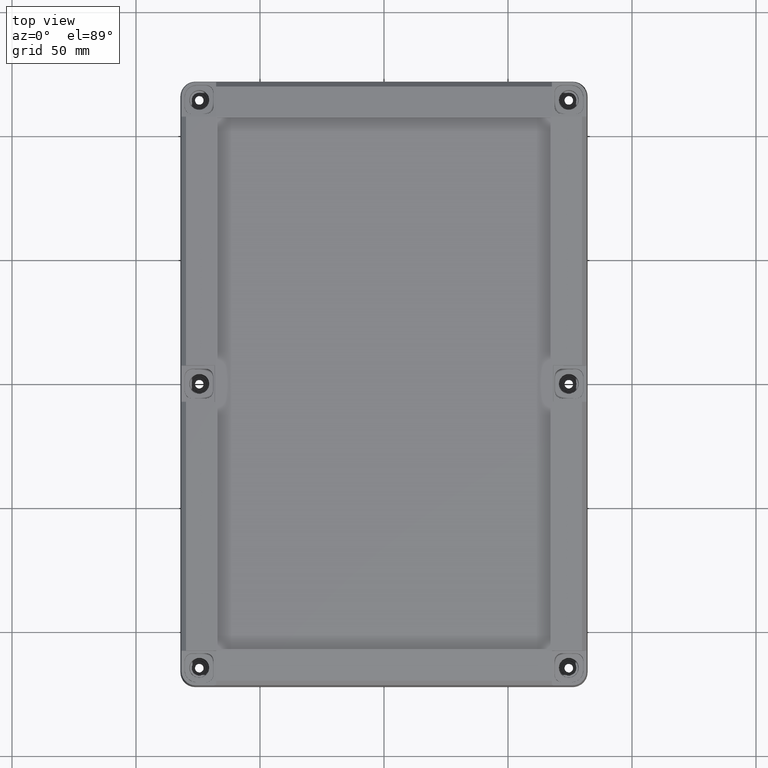
[diagram: clean part render]
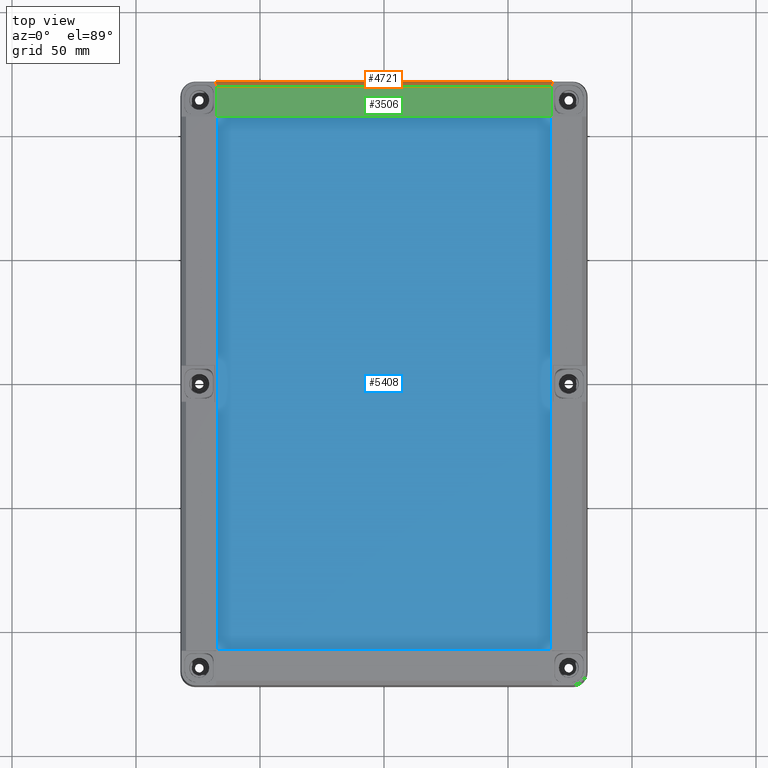
[diagram: same view with three faces highlighted in distinct colors, each labeled with its STEP entity id]
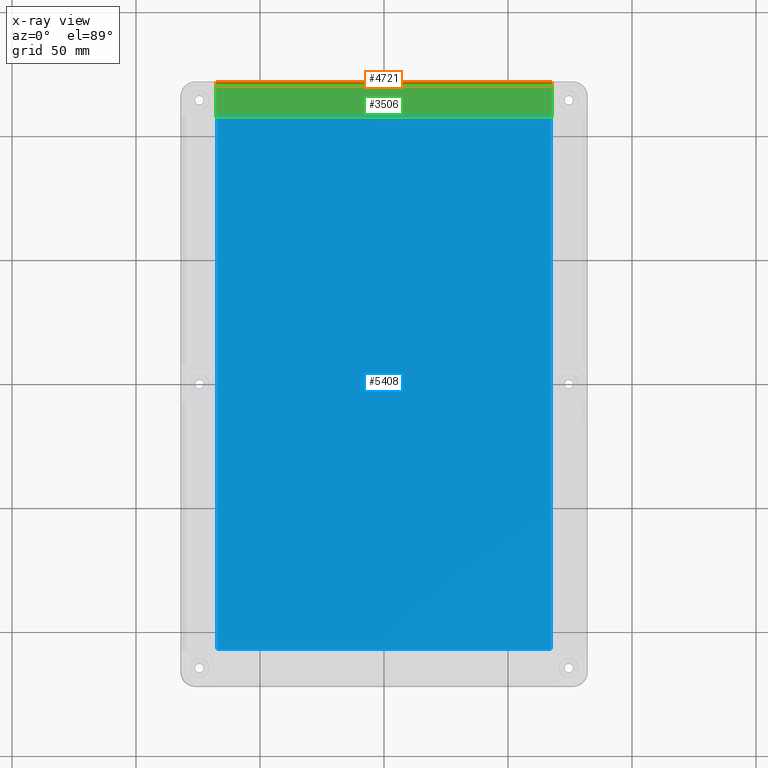
[diagram: x-ray of the same camera — body ghosted, the three highlighted faces saturated]
A machine part, top view with three faces highlighted in distinct colors.
The next image is the same camera in x-ray (body ghosted, the three faces saturated) — at least one of them is partly hidden behind the body in this view.
Their STEP definitions:

[orange] entity #4721 — the highlighted planar face has unit normal (0, -0.7314, -0.682).
#265 = LINE ( 'NONE', #5416, #1408 ) ;
#324 = VECTOR ( 'NONE', #5333, 1000.000000000000000 ) ;
#578 = DIRECTION ( 'NONE',  ( -0.01190002584280855400, 0.6819500692491989900, -0.7313019160620004600 ) ) ;
#735 = PLANE ( 'NONE',  #1246 ) ;
#1001 = ORIENTED_EDGE ( 'NONE', *, *, #3392, .F. ) ;
#1065 = EDGE_CURVE ( 'NONE', #3693, #2339, #2463, .T. ) ;
#1099 = CARTESIAN_POINT ( 'NONE',  ( -82.09999999999996600, 119.8356825560880900, 18.93934225913596200 ) ) ;
#1221 = DIRECTION ( 'NONE',  ( 1.000000000000000000, 0.0000000000000000000, 0.0000000000000000000 ) ) ;
#1246 = AXIS2_PLACEMENT_3D ( 'NONE', #2139, #4018, #1221 ) ;
#1298 = VERTEX_POINT ( 'NONE', #5971 ) ;
#1315 = CARTESIAN_POINT ( 'NONE',  ( -67.71230767677299400, 121.6429275376264800, 17.00130928958507300 ) ) ;
#1408 = VECTOR ( 'NONE', #4463, 1000.000000000000000 ) ;
#1506 = ORIENTED_EDGE ( 'NONE', *, *, #1065, .F. ) ;
#1533 = FACE_OUTER_BOUND ( 'NONE', #5298, .T. ) ;
#1611 = LINE ( 'NONE', #1099, #324 ) ;
#1631 = VERTEX_POINT ( 'NONE', #3711 ) ;
#2139 = CARTESIAN_POINT ( 'NONE',  ( -82.09999999999996600, 121.6429275376264800, 17.00130928958507000 ) ) ;
#2140 = LINE ( 'NONE', #4815, #4497 ) ;
#2339 = VERTEX_POINT ( 'NONE', #1315 ) ;
#2463 = LINE ( 'NONE', #3389, #4819 ) ;
#2564 = ORIENTED_EDGE ( 'NONE', *, *, #2863, .F. ) ;
#2863 = EDGE_CURVE ( 'NONE', #1298, #1631, #2140, .T. ) ;
#3077 = ORIENTED_EDGE ( 'NONE', *, *, #4925, .F. ) ;
#3389 = CARTESIAN_POINT ( 'NONE',  ( -68.03248165372265500, 139.9910108642321500, -2.674601158792286900 ) ) ;
#3392 = EDGE_CURVE ( 'NONE', #2339, #1298, #265, .T. ) ;
#3693 = VERTEX_POINT ( 'NONE', #5197 ) ;
#3711 = CARTESIAN_POINT ( 'NONE',  ( 67.68077125943929700, 119.8356825560880900, 18.93934225913596200 ) ) ;
#4018 = DIRECTION ( 'NONE',  ( 0.0000000000000000000, -0.7313537016191678000, -0.6819983600625014700 ) ) ;
#4463 = DIRECTION ( 'NONE',  ( 1.000000000000000000, 0.0000000000000000000, 0.0000000000000000000 ) ) ;
#4497 = VECTOR ( 'NONE', #5307, 1000.000000000000000 ) ;
#4721 = ADVANCED_FACE ( 'NONE', ( #1533 ), #735, .F. ) ;
#4815 = CARTESIAN_POINT ( 'NONE',  ( 67.69109266373939700, 120.4271671856332900, 18.30505264995116500 ) ) ;
#4819 = VECTOR ( 'NONE', #578, 1000.000000000000000 ) ;
#4925 = EDGE_CURVE ( 'NONE', #1631, #3693, #1611, .T. ) ;
#5197 = CARTESIAN_POINT ( 'NONE',  ( -67.68077125943929700, 119.8356825560880900, 18.93934225913596200 ) ) ;
#5298 = EDGE_LOOP ( 'NONE', ( #1506, #3077, #2564, #1001 ) ) ;
#5307 = DIRECTION ( 'NONE',  ( -0.01190002584280855400, -0.6819500692491989900, 0.7313019160620004600 ) ) ;
#5333 = DIRECTION ( 'NONE',  ( -1.000000000000000000, 0.0000000000000000000, 0.0000000000000000000 ) ) ;
#5416 = CARTESIAN_POINT ( 'NONE',  ( -82.09999999999996600, 121.6429275376264800, 17.00130928958507300 ) ) ;
#5971 = CARTESIAN_POINT ( 'NONE',  ( 67.71230767677295100, 121.6429275376264800, 17.00130928958507300 ) ) ;

[blue] entity #5408 — the highlighted planar face has unit normal (-0, 0, 1).
#165 = LINE ( 'NONE', #269, #3799 ) ;
#235 = VECTOR ( 'NONE', #6108, 1000.000000000000000 ) ;
#269 = CARTESIAN_POINT ( 'NONE',  ( 0.0000000000000000000, 107.1948540377548100, 19.00000000000000000 ) ) ;
#357 = LINE ( 'NONE', #916, #5763 ) ;
#423 = EDGE_CURVE ( 'NONE', #2145, #4924, #357, .T. ) ;
#490 = LINE ( 'NONE', #5666, #3816 ) ;
#547 = AXIS2_PLACEMENT_3D ( 'NONE', #580, #4356, #1543 ) ;
#580 = CARTESIAN_POINT ( 'NONE',  ( 0.0000000000000000000, 0.0000000000000000000, 19.00000000000000000 ) ) ;
#794 = EDGE_CURVE ( 'NONE', #4373, #3683, #165, .T. ) ;
#916 = CARTESIAN_POINT ( 'NONE',  ( 0.0000000000000000000, -107.1948540377548100, 19.00000000000000000 ) ) ;
#1011 = EDGE_CURVE ( 'NONE', #4924, #4373, #2760, .T. ) ;
#1092 = ORIENTED_EDGE ( 'NONE', *, *, #3666, .T. ) ;
#1324 = EDGE_LOOP ( 'NONE', ( #3455, #4322, #1092, #3953 ) ) ;
#1543 = DIRECTION ( 'NONE',  ( 1.000000000000000000, 0.0000000000000000000, 0.0000000000000000000 ) ) ;
#2145 = VERTEX_POINT ( 'NONE', #2497 ) ;
#2497 = CARTESIAN_POINT ( 'NONE',  ( -67.19485403775476600, -107.1948540377548100, 19.00000000000000000 ) ) ;
#2760 = LINE ( 'NONE', #2792, #235 ) ;
#2792 = CARTESIAN_POINT ( 'NONE',  ( 67.19485403775475200, 0.0000000000000000000, 19.00000000000000000 ) ) ;
#2829 = DIRECTION ( 'NONE',  ( 0.0000000000000000000, -1.000000000000000000, 0.0000000000000000000 ) ) ;
#3191 = FACE_OUTER_BOUND ( 'NONE', #1324, .T. ) ;
#3455 = ORIENTED_EDGE ( 'NONE', *, *, #1011, .T. ) ;
#3573 = DIRECTION ( 'NONE',  ( -1.000000000000000000, 0.0000000000000000000, 0.0000000000000000000 ) ) ;
#3666 = EDGE_CURVE ( 'NONE', #3683, #2145, #490, .T. ) ;
#3683 = VERTEX_POINT ( 'NONE', #4252 ) ;
#3799 = VECTOR ( 'NONE', #3573, 1000.000000000000000 ) ;
#3816 = VECTOR ( 'NONE', #2829, 1000.000000000000000 ) ;
#3870 = PLANE ( 'NONE',  #547 ) ;
#3953 = ORIENTED_EDGE ( 'NONE', *, *, #423, .T. ) ;
#4024 = DIRECTION ( 'NONE',  ( 1.000000000000000000, 0.0000000000000000000, 0.0000000000000000000 ) ) ;
#4252 = CARTESIAN_POINT ( 'NONE',  ( -67.19485403775476600, 107.1948540377548100, 19.00000000000000000 ) ) ;
#4322 = ORIENTED_EDGE ( 'NONE', *, *, #794, .T. ) ;
#4356 = DIRECTION ( 'NONE',  ( -0.0000000000000000000, 0.0000000000000000000, 1.000000000000000000 ) ) ;
#4373 = VERTEX_POINT ( 'NONE', #6081 ) ;
#4848 = CARTESIAN_POINT ( 'NONE',  ( 67.19485403775476600, -107.1948540377548100, 19.00000000000000000 ) ) ;
#4924 = VERTEX_POINT ( 'NONE', #4848 ) ;
#5408 = ADVANCED_FACE ( 'NONE', ( #3191 ), #3870, .T. ) ;
#5666 = CARTESIAN_POINT ( 'NONE',  ( -67.19485403775475200, 0.0000000000000000000, 19.00000000000000000 ) ) ;
#5763 = VECTOR ( 'NONE', #4024, 1000.000000000000000 ) ;
#6081 = CARTESIAN_POINT ( 'NONE',  ( 67.19485403775476600, 107.1948540377548100, 19.00000000000000000 ) ) ;
#6108 = DIRECTION ( 'NONE',  ( 0.0000000000000000000, 1.000000000000000000, 0.0000000000000000000 ) ) ;

[green] entity #3506 — the highlighted planar face has unit normal (0, 0.0872, 0.9962).
#252 = EDGE_CURVE ( 'NONE', #3693, #4957, #502, .T. ) ;
#324 = VECTOR ( 'NONE', #5333, 1000.000000000000000 ) ;
#376 = DIRECTION ( 'NONE',  ( -1.000000000000000000, 0.0000000000000000000, 0.0000000000000000000 ) ) ;
#496 = CARTESIAN_POINT ( 'NONE',  ( 67.68077125943926800, 107.7123091026829500, 20.00000000000000000 ) ) ;
#502 = LINE ( 'NONE', #5034, #5684 ) ;
#582 = CARTESIAN_POINT ( 'NONE',  ( 67.68077125943926800, 121.5949623929181800, 18.78542521744359600 ) ) ;
#635 = EDGE_LOOP ( 'NONE', ( #5852, #3988, #4756, #1125 ) ) ;
#656 = CARTESIAN_POINT ( 'NONE',  ( -67.68077125943929700, 107.7123091026829700, 20.00000000000000000 ) ) ;
#799 = DIRECTION ( 'NONE',  ( -2.177422268809272400E-016, -0.9961946980917457700, 0.08715574274765486300 ) ) ;
#856 = CARTESIAN_POINT ( 'NONE',  ( -81.56230910268362800, 107.7123091026829700, 20.00000000000000000 ) ) ;
#1099 = CARTESIAN_POINT ( 'NONE',  ( -82.09999999999996600, 119.8356825560880900, 18.93934225913596200 ) ) ;
#1125 = ORIENTED_EDGE ( 'NONE', *, *, #2366, .F. ) ;
#1392 = VERTEX_POINT ( 'NONE', #496 ) ;
#1611 = LINE ( 'NONE', #1099, #324 ) ;
#1631 = VERTEX_POINT ( 'NONE', #3711 ) ;
#1802 = DIRECTION ( 'NONE',  ( 0.0000000000000000000, 0.08715574274765489100, 0.9961946980917458800 ) ) ;
#2245 = PLANE ( 'NONE',  #5559 ) ;
#2366 = EDGE_CURVE ( 'NONE', #1392, #4957, #4938, .T. ) ;
#2831 = EDGE_CURVE ( 'NONE', #1631, #1392, #5908, .T. ) ;
#3506 = ADVANCED_FACE ( 'NONE', ( #5976 ), #2245, .T. ) ;
#3693 = VERTEX_POINT ( 'NONE', #5197 ) ;
#3711 = CARTESIAN_POINT ( 'NONE',  ( 67.68077125943929700, 119.8356825560880900, 18.93934225913596200 ) ) ;
#3872 = DIRECTION ( 'NONE',  ( 2.177422268809272400E-016, -0.9961946980917457700, 0.08715574274765486300 ) ) ;
#3988 = ORIENTED_EDGE ( 'NONE', *, *, #4925, .T. ) ;
#4756 = ORIENTED_EDGE ( 'NONE', *, *, #252, .T. ) ;
#4925 = EDGE_CURVE ( 'NONE', #1631, #3693, #1611, .T. ) ;
#4930 = VECTOR ( 'NONE', #3872, 1000.000000000000200 ) ;
#4938 = LINE ( 'NONE', #856, #5915 ) ;
#4957 = VERTEX_POINT ( 'NONE', #656 ) ;
#5034 = CARTESIAN_POINT ( 'NONE',  ( -67.68077125943929700, 121.5949623929181500, 18.78542521744359900 ) ) ;
#5061 = CARTESIAN_POINT ( 'NONE',  ( -82.09999999999996600, 121.5949623929181500, 18.78542521744359900 ) ) ;
#5086 = DIRECTION ( 'NONE',  ( -1.000000000000000000, 0.0000000000000000000, 0.0000000000000000000 ) ) ;
#5197 = CARTESIAN_POINT ( 'NONE',  ( -67.68077125943929700, 119.8356825560880900, 18.93934225913596200 ) ) ;
#5333 = DIRECTION ( 'NONE',  ( -1.000000000000000000, 0.0000000000000000000, 0.0000000000000000000 ) ) ;
#5559 = AXIS2_PLACEMENT_3D ( 'NONE', #5061, #1802, #5086 ) ;
#5684 = VECTOR ( 'NONE', #799, 1000.000000000000200 ) ;
#5852 = ORIENTED_EDGE ( 'NONE', *, *, #2831, .F. ) ;
#5908 = LINE ( 'NONE', #582, #4930 ) ;
#5915 = VECTOR ( 'NONE', #376, 1000.000000000000000 ) ;
#5976 = FACE_OUTER_BOUND ( 'NONE', #635, .T. ) ;